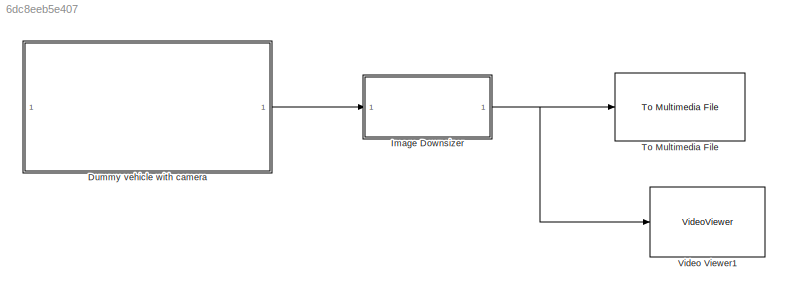
MODEL slx_6dc8eeb5e407
KIND model
CONFIG AbsTol = auto
CONFIG EnableMultiTasking = off
CONFIG FixedStep = auto
CONFIG MaxStep = auto
CONFIG MinStep = auto
CONFIG RelTol = 1e-3
CONFIG SampleTimeConstraint = Unconstrained
CONFIG SolverName = VariableStepAuto
CONFIG StartTime = 0.0
CONFIG StopTime = 33.26
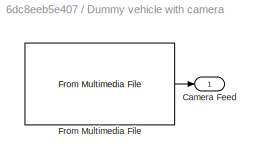
BLOCK [SubSystem] Dummy vehicle with camera
BLOCK [Outport] Dummy vehicle with camera/Camera Feed
BLOCK [Reference] Dummy vehicle with camera/From Multimedia File  REF=dspvision/From Multimedia File
  SourceBlock = dspvision/From Multimedia File
  SourceType = From Multimedia File
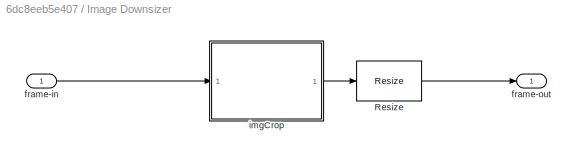
BLOCK [SubSystem] Image Downsizer
BLOCK [Reference] Image Downsizer/Resize  REF=visiongeotforms/Resize
  SourceBlock = visiongeotforms/Resize
  SourceType = Resize
BLOCK [Inport] Image Downsizer/frame-in
BLOCK [Outport] Image Downsizer/frame-out
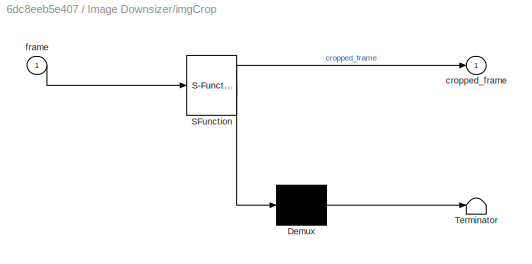
BLOCK [SubSystem] Image Downsizer/imgCrop
  ErrorFcn = Stateflow.Translate.translate
  PermitHierarchicalResolution = ExplicitOnly
  SFBlockType = MATLAB Function
  TreatAsAtomicUnit = on
BLOCK [Demux] Image Downsizer/imgCrop/ Demux 
  Outputs = 1
BLOCK [S-Function] Image Downsizer/imgCrop/ SFunction 
  EnableBusSupport = on
  FunctionName = sf_sfun
  PortCounts = [1 2]
  SFcnIsStateOwnerBlock = off
  SFunctionDeploymentMode = off
  Tag = Stateflow S-Function 2
BLOCK [Terminator] Image Downsizer/imgCrop/ Terminator 
BLOCK [Outport] Image Downsizer/imgCrop/cropped_frame
BLOCK [Inport] Image Downsizer/imgCrop/frame
BLOCK [Reference] To Multimedia File  REF=dspvision/To Multimedia File
  SourceBlock = dspvision/To Multimedia File
  SourceType = To Multimedia File
BLOCK [VideoViewer] Video Viewer1
  FigPos = [827 610 426 411]
  ScopeSpecificationString = vipscopes.VideoViewerScopeCfg('CurrentConfiguration', extmgr.ConfigurationSet(extmgr.Configuration('Core','General UI',true),extmgr.Configuration('Core','Source UI',true),extmgr.Configuration('Sources','WiredSimulink',true),extmgr.Configuration('Visuals','Video',true),extmgr.Configuration('Tools','Image Navigation Tools',true,'Magnification',0.925480769230769,'FitToView',true),extmgr.Configuration...<+126ch>
  colormapValue = gray(256)
LINE Dummy vehicle with camera/From Multimedia File:1 -> Dummy vehicle with camera/Camera Feed:1
LINE Dummy vehicle with camera:1 -> Image Downsizer:1
LINE Image Downsizer/Resize:1 -> Image Downsizer/frame-out:1
LINE Image Downsizer/frame-in:1 -> Image Downsizer/imgCrop:1
LINE Image Downsizer/imgCrop:1 -> Image Downsizer/Resize:1
NET Image Downsizer:1 -> To Multimedia File:1, Video Viewer1:1
note: NET lines group one-source signal fan-out (src -> all destinations, sorted); 1:1 wires keep LINE
CHART Image Downsizer/imgCrop states=1 transitions=1
  STATE_LABEL 'eML_blk_kernel()'
  STATE_LABEL 'SCRIPT:\nfunction cropped_frame = fcn(frame)\n\ncropped_frame = imcrop(frame, [281,1,719,719]);\n'
CHART  states=0 transitions=0
